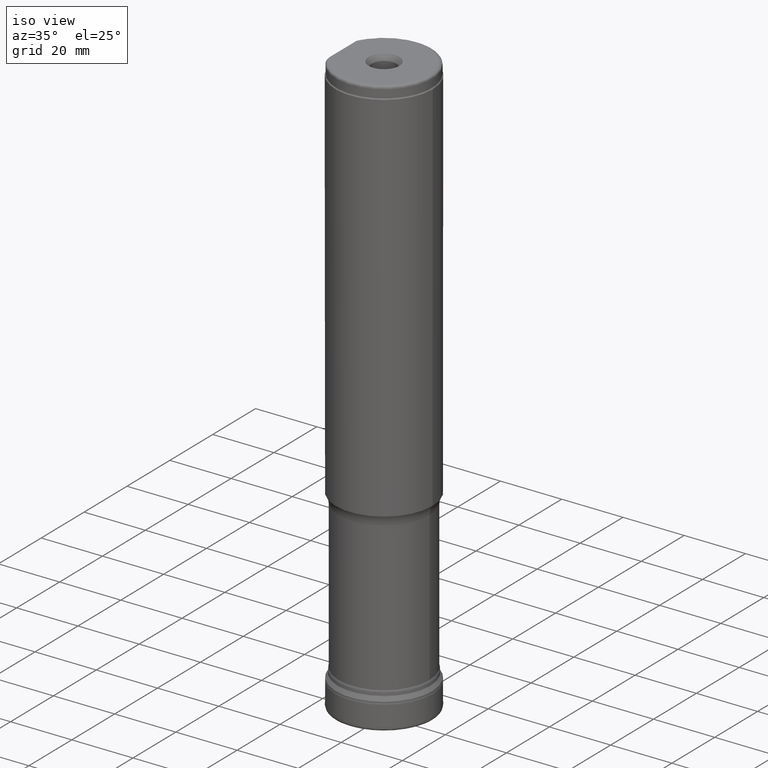
[diagram: clean part render]
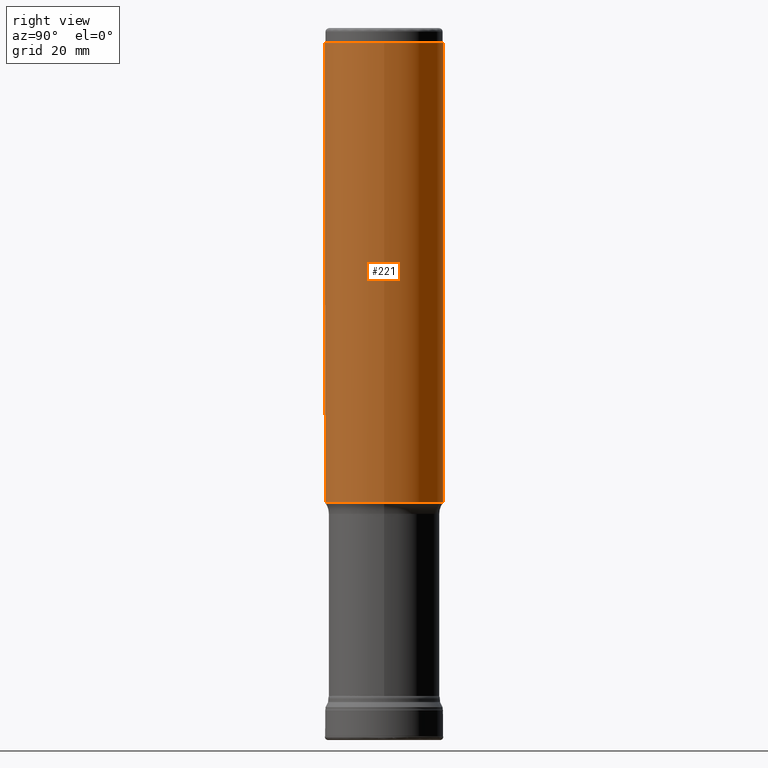
[diagram: tour spotlight — one face highlighted and labeled with its STEP entity id]
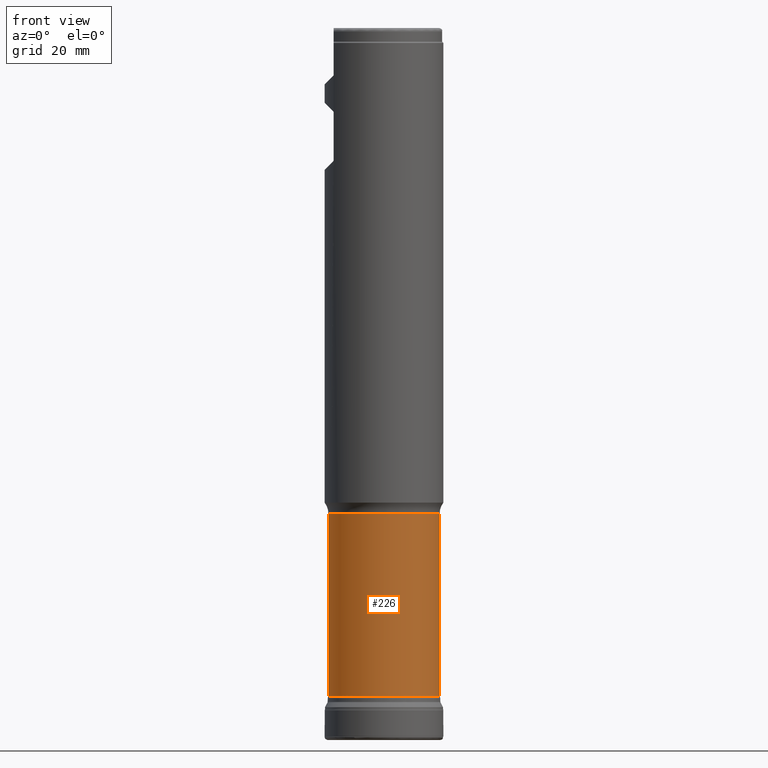
[diagram: tour spotlight — one face highlighted and labeled with its STEP entity id]
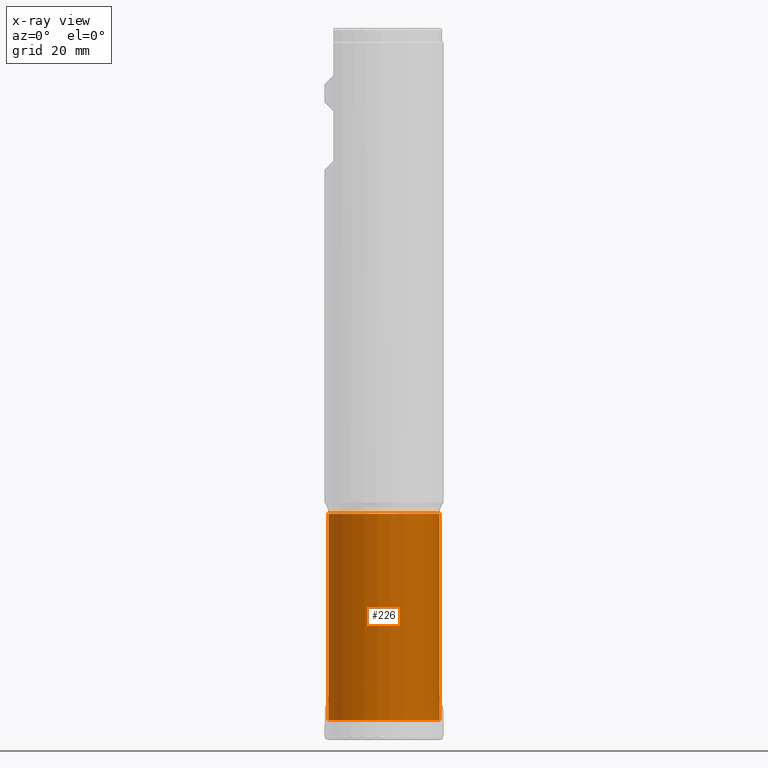
[diagram: x-ray of the same camera — body ghosted, this tour face saturated]
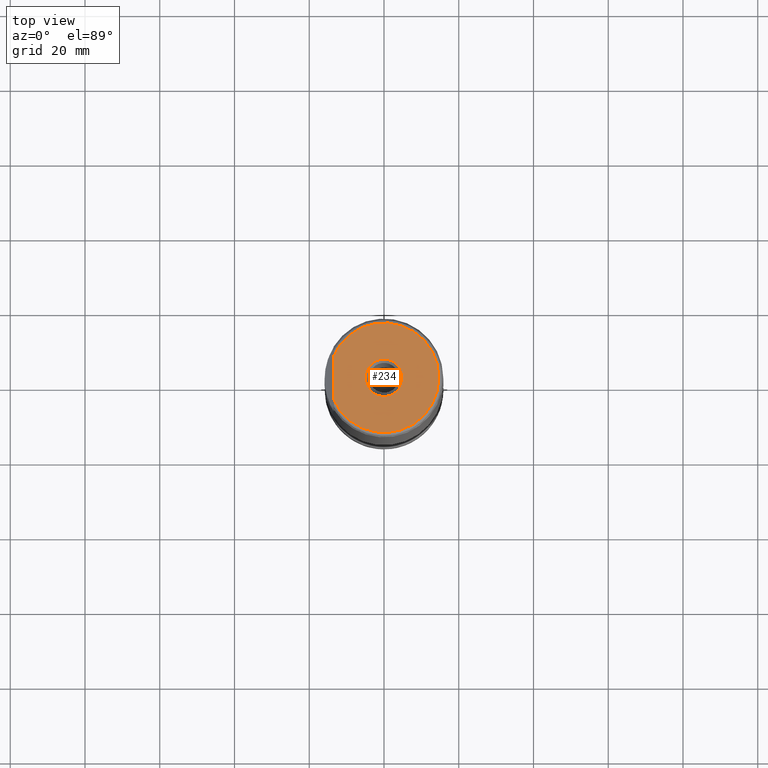
[diagram: tour spotlight — one face highlighted and labeled with its STEP entity id]
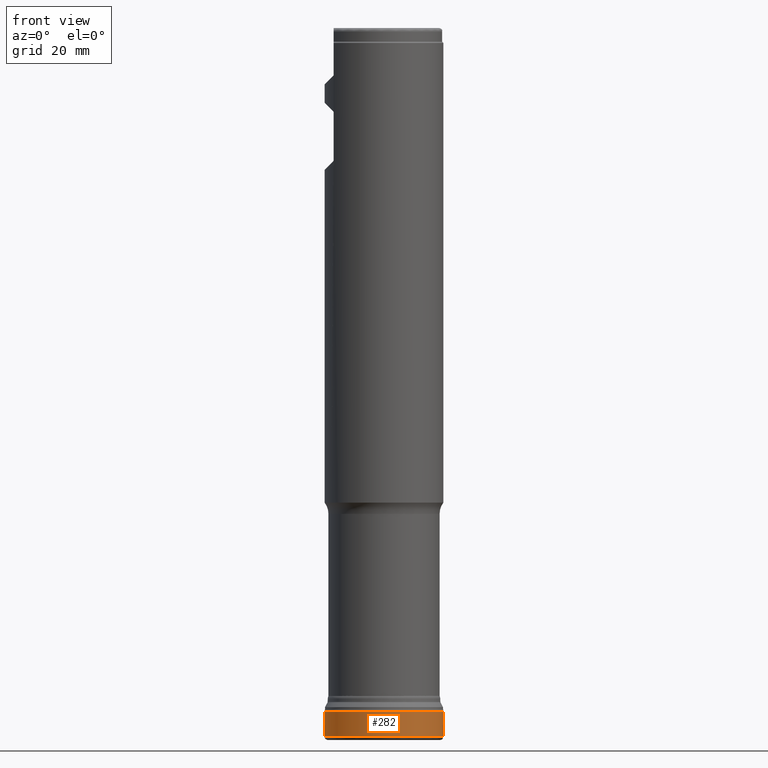
[diagram: tour spotlight — one face highlighted and labeled with its STEP entity id]
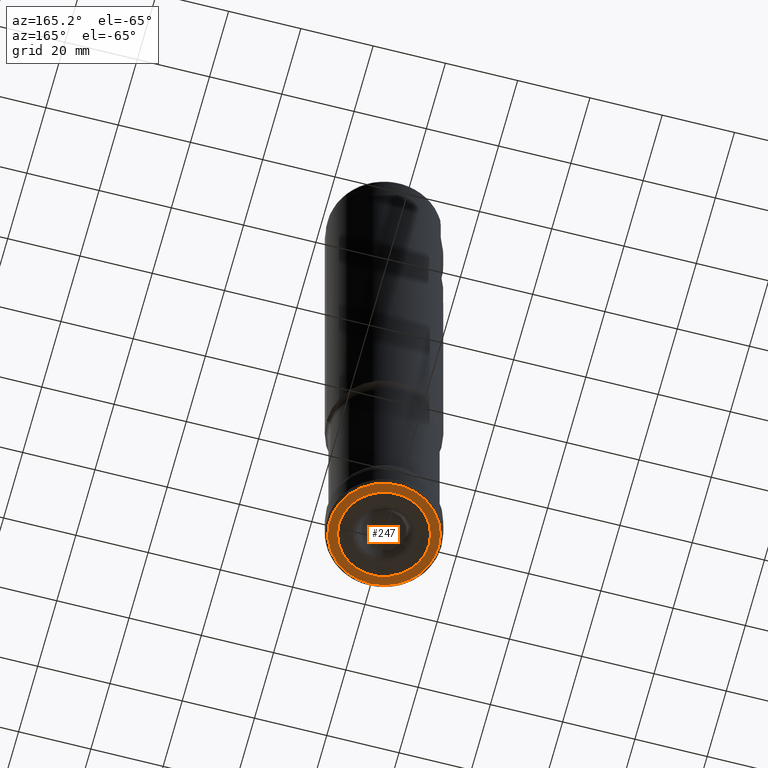
[diagram: tour spotlight — one face highlighted and labeled with its STEP entity id]
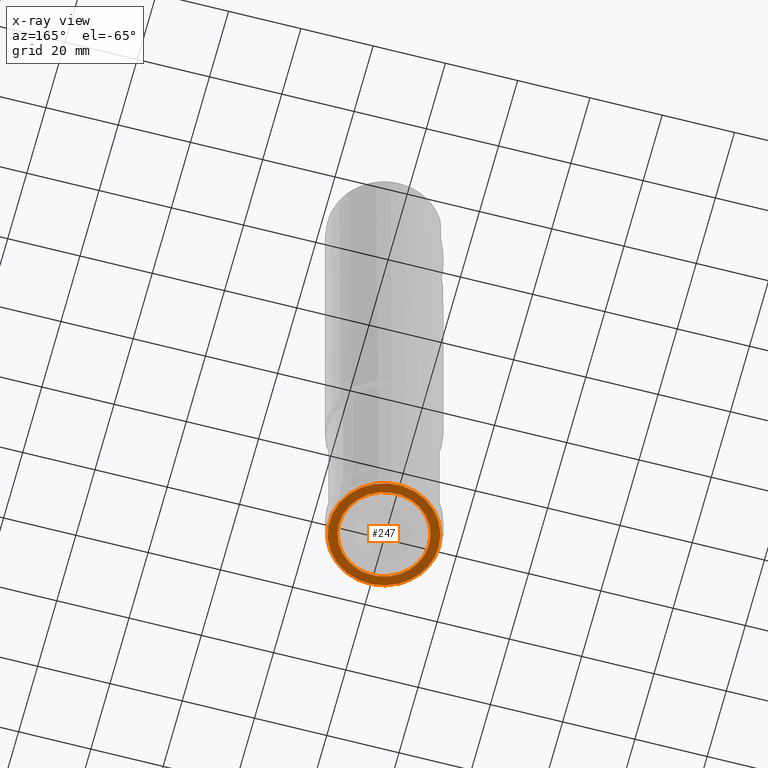
[diagram: x-ray of the same camera — body ghosted, this tour face saturated]
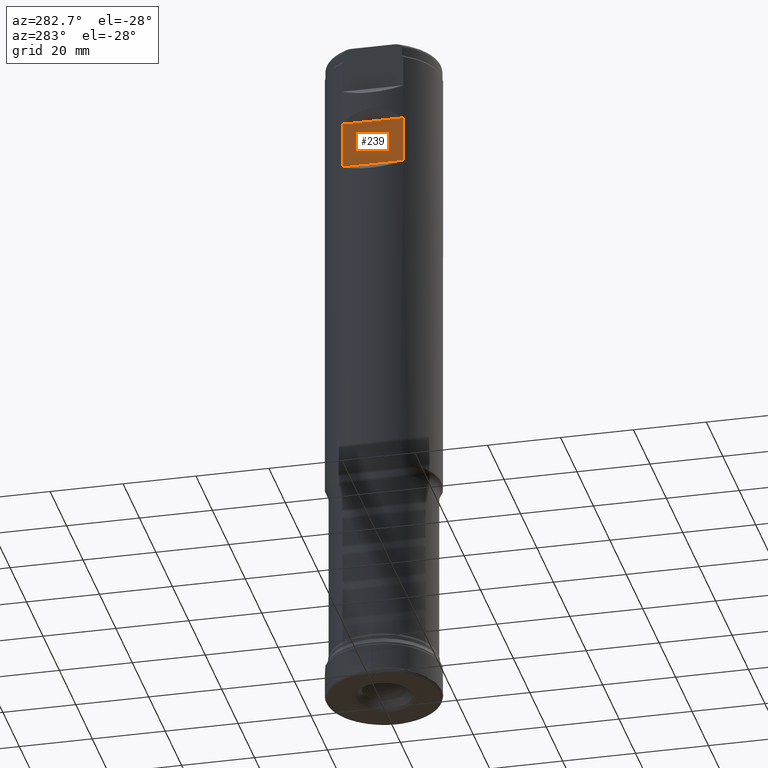
[diagram: tour spotlight — one face highlighted and labeled with its STEP entity id]
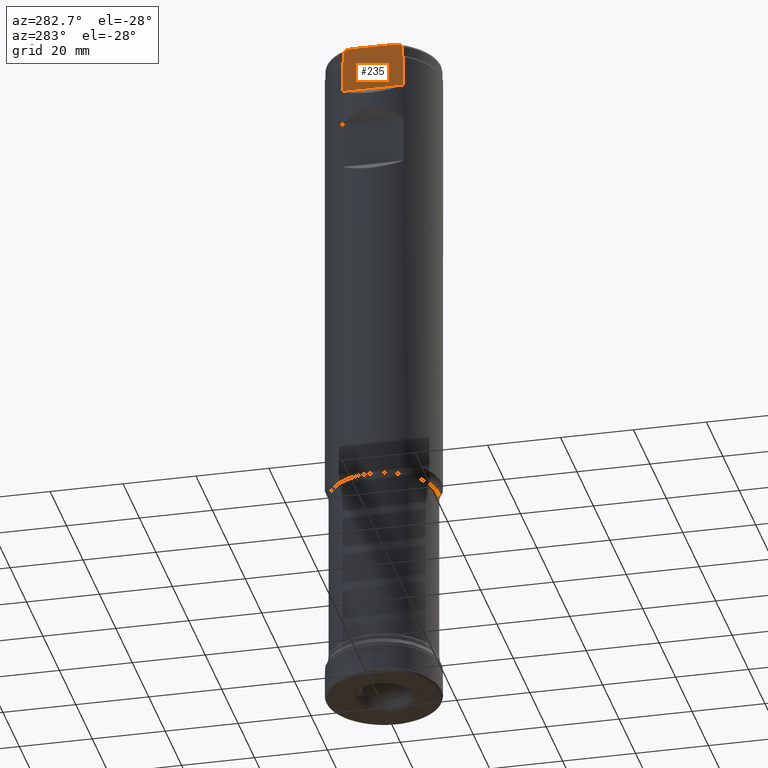
[diagram: tour spotlight — one face highlighted and labeled with its STEP entity id]
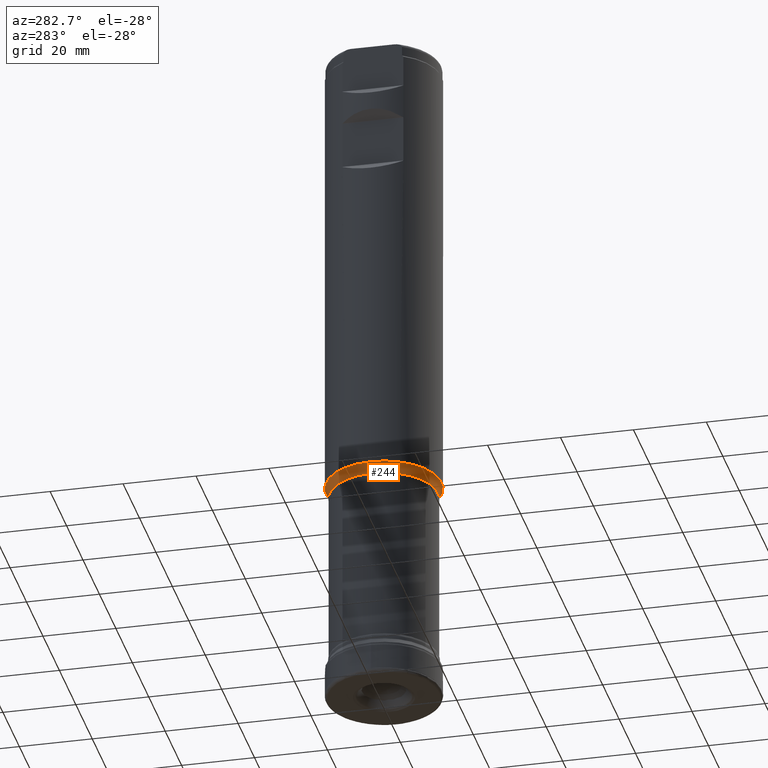
[diagram: tour spotlight — one face highlighted and labeled with its STEP entity id]
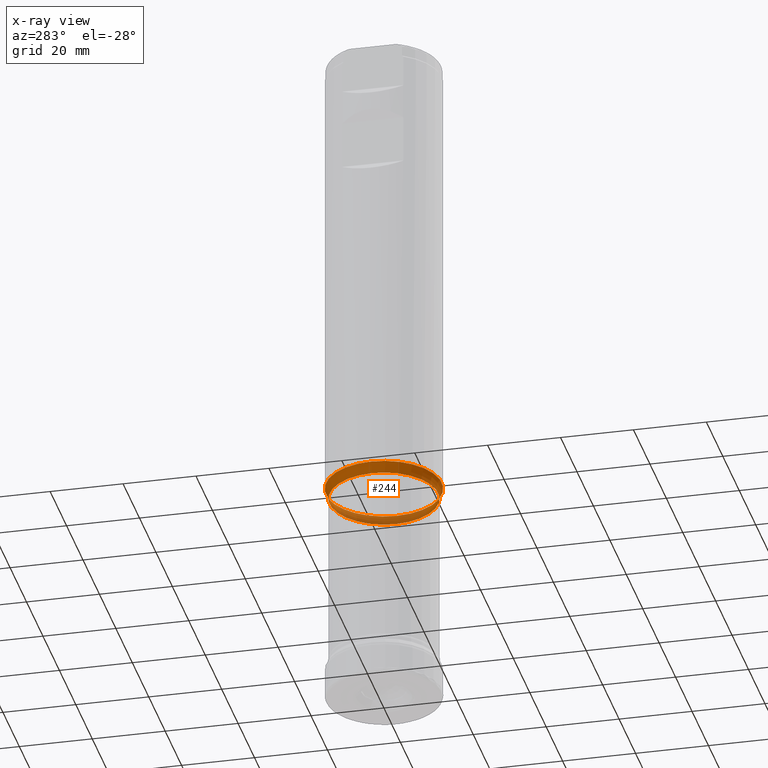
[diagram: x-ray of the same camera — body ghosted, this tour face saturated]
A machine part: a face-by-face anatomy tour. The part has 63 B-rep faces; the first image is the clean iso view, then the 8 largest visible faces are spotlighted one at a time (largest first), each with its STEP entity span.

Face 1 — right view, entity #221. In plain terms, the highlighted cylindrical surface (bore or boss wall) has radius 15.875 mm, axis along (0, 0, 1).
Definition (entity closure, byte-faithful):
#221=ADVANCED_FACE('',(#320,#321,#322),#284,.T.);
#284=CYLINDRICAL_SURFACE('',#993,15.875);
#291=LINE('',#1614,#304);
#292=LINE('',#1646,#305);
#293=LINE('',#1661,#306);
#294=LINE('',#1694,#307);
#304=VECTOR('',#1065,1.);
#305=VECTOR('',#1068,1.);
#306=VECTOR('',#1069,1.);
#307=VECTOR('',#1072,1.);
#317=ELLIPSE('',#989,22.4506403026729,15.875);
#318=ELLIPSE('',#990,22.4506403026729,15.875);
#319=ELLIPSE('',#991,22.4506403026729,15.875);
#320=FACE_BOUND('',#423,.T.);
#321=FACE_BOUND('',#424,.T.);
#322=FACE_BOUND('',#425,.T.);
#423=EDGE_LOOP('',(#537));
#424=EDGE_LOOP('',(#538,#539,#540,#541,#542,#543,#544,#545));
#425=EDGE_LOOP('',(#546,#547,#548,#549,#550,#551));
#537=ORIENTED_EDGE('',*,*,#768,.T.);
#538=ORIENTED_EDGE('',*,*,#769,.F.);
#539=ORIENTED_EDGE('',*,*,#770,.T.);
#540=ORIENTED_EDGE('',*,*,#771,.F.);
#541=ORIENTED_EDGE('',*,*,#772,.T.);
#542=ORIENTED_EDGE('',*,*,#773,.F.);
#543=ORIENTED_EDGE('',*,*,#774,.T.);
#544=ORIENTED_EDGE('',*,*,#775,.F.);
#545=ORIENTED_EDGE('',*,*,#776,.T.);
#546=ORIENTED_EDGE('',*,*,#777,.F.);
#547=ORIENTED_EDGE('',*,*,#778,.T.);
#548=ORIENTED_EDGE('',*,*,#779,.F.);
#549=ORIENTED_EDGE('',*,*,#780,.T.);
#550=ORIENTED_EDGE('',*,*,#781,.F.);
#551=ORIENTED_EDGE('',*,*,#782,.T.);
#697=VERTEX_POINT('',#1596);
#698=VERTEX_POINT('',#1598);
#699=VERTEX_POINT('',#1599);
#700=VERTEX_POINT('',#1613);
#701=VERTEX_POINT('',#1615);
#702=VERTEX_POINT('',#1629);
#703=VERTEX_POINT('',#1631);
#704=VERTEX_POINT('',#1645);
#705=VERTEX_POINT('',#1647);
#706=VERTEX_POINT('',#1662);
#707=VERTEX_POINT('',#1663);
#708=VERTEX_POINT('',#1677);
#709=VERTEX_POINT('',#1679);
#710=VERTEX_POINT('',#1693);
#711=VERTEX_POINT('',#1695);
#768=EDGE_CURVE('',#697,#697,#848,.T.);
#769=EDGE_CURVE('',#698,#699,#317,.T.);
#770=EDGE_CURVE('',#698,#700,#934,.T.);
#771=EDGE_CURVE('',#701,#700,#291,.T.);
#772=EDGE_CURVE('',#701,#702,#935,.T.);
#773=EDGE_CURVE('',#703,#702,#318,.T.);
#774=EDGE_CURVE('',#703,#704,#936,.T.);
#775=EDGE_CURVE('',#705,#704,#292,.T.);
#776=EDGE_CURVE('',#705,#699,#937,.T.);
#777=EDGE_CURVE('',#706,#707,#293,.T.);
#778=EDGE_CURVE('',#706,#708,#938,.T.);
#779=EDGE_CURVE('',#709,#708,#319,.T.);
#780=EDGE_CURVE('',#709,#710,#939,.T.);
#781=EDGE_CURVE('',#711,#710,#294,.T.);
#782=EDGE_CURVE('',#711,#707,#849,.T.);
#848=CIRCLE('',#988,15.875);
#849=CIRCLE('',#992,15.875);
#934=B_SPLINE_CURVE_WITH_KNOTS('',3,(#1600,#1601,#1602,#1603,#1604,#1605,
#1606,#1607,#1608,#1609,#1610,#1611,#1612),.UNSPECIFIED.,.F.,.F.,(4,3,3,
3,4),(0.,0.454533174547886,0.702164538890531,0.910432884672688,1.),
 .UNSPECIFIED.);
#935=B_SPLINE_CURVE_WITH_KNOTS('',3,(#1616,#1617,#1618,#1619,#1620,#1621,
#1622,#1623,#1624,#1625,#1626,#1627,#1628),.UNSPECIFIED.,.F.,.F.,(4,3,3,
3,4),(0.,0.199147216075928,0.441583635070333,0.807737111942939,1.),
 .UNSPECIFIED.);
#936=B_SPLINE_CURVE_WITH_KNOTS('',3,(#1632,#1633,#1634,#1635,#1636,#1637,
#1638,#1639,#1640,#1641,#1642,#1643,#1644),.UNSPECIFIED.,.F.,.F.,(4,3,3,
3,4),(0.,0.454533174547967,0.702164538890592,0.910432884672705,1.),
 .UNSPECIFIED.);
#937=B_SPLINE_CURVE_WITH_KNOTS('',3,(#1648,#1649,#1650,#1651,#1652,#1653,
#1654,#1655,#1656,#1657,#1658,#1659,#1660),.UNSPECIFIED.,.F.,.F.,(4,3,3,
3,4),(0.,0.199147216075945,0.44158363507037,0.807737111943004,1.),
 .UNSPECIFIED.);
#938=B_SPLINE_CURVE_WITH_KNOTS('',3,(#1664,#1665,#1666,#1667,#1668,#1669,
#1670,#1671,#1672,#1673,#1674,#1675,#1676),.UNSPECIFIED.,.F.,.F.,(4,3,3,
3,4),(0.,0.199147216075944,0.441583635070369,0.807737111943004,1.),
 .UNSPECIFIED.);
#939=B_SPLINE_CURVE_WITH_KNOTS('',3,(#1680,#1681,#1682,#1683,#1684,#1685,
#1686,#1687,#1688,#1689,#1690,#1691,#1692),.UNSPECIFIED.,.F.,.F.,(4,3,3,
3,4),(0.,0.454533174547886,0.702164538890532,0.910432884672689,1.),
 .UNSPECIFIED.);
#988=AXIS2_PLACEMENT_3D('',#1595,#1061,#1062);
#989=AXIS2_PLACEMENT_3D('',#1597,#1063,#1064);
#990=AXIS2_PLACEMENT_3D('',#1630,#1066,#1067);
#991=AXIS2_PLACEMENT_3D('',#1678,#1070,#1071);
#992=AXIS2_PLACEMENT_3D('',#1696,#1073,#1074);
#993=AXIS2_PLACEMENT_3D('',#1697,#1075,#1076);
#1061=DIRECTION('',(1.17145536458252E-15,0.,1.));
#1062=DIRECTION('',(1.,0.,-8.74191357972563E-16));
#1063=DIRECTION('',(-0.707106781186548,0.,-0.707106781186547));
#1064=DIRECTION('',(-0.707106781186547,0.,0.707106781186548));
#1065=DIRECTION('',(1.17145536458252E-15,0.,1.));
#1066=DIRECTION('',(-0.707106781186547,0.,0.707106781186548));
#1067=DIRECTION('',(0.707106781186548,0.,0.707106781186547));
#1068=DIRECTION('',(-1.17145536458252E-15,0.,-1.));
#1069=DIRECTION('',(1.17145536458252E-15,0.,1.));
#1070=DIRECTION('',(-0.707106781186547,0.,0.707106781186548));
#1071=DIRECTION('',(0.707106781186548,0.,0.707106781186547));
#1072=DIRECTION('',(-1.17145536458252E-15,0.,-1.));
#1073=DIRECTION('',(-1.17145536458252E-15,0.,-1.));
#1074=DIRECTION('',(-1.,0.,1.74838271594513E-15));
#1075=DIRECTION('',(1.17145536458252E-15,0.,1.));
#1076=DIRECTION('',(1.,0.,-1.74838271594513E-15));
#1595=CARTESIAN_POINT('',(7.43874156509903E-14,0.,63.5));
#1596=CARTESIAN_POINT('',(15.8750000000001,0.,63.5));
#1597=CARTESIAN_POINT('',(1.81099882773118E-13,0.,154.593925));
#1598=CARTESIAN_POINT('',(-13.5752679656438,-8.22968557485394,168.169192965644));
#1599=CARTESIAN_POINT('',(-13.5752679656438,8.22968557485394,168.169192965644));
#1600=CARTESIAN_POINT('',(-13.5752679656438,-8.22968557485394,168.169192965644));
#1601=CARTESIAN_POINT('',(-13.5555907887269,-8.26214403842777,168.149515788727));
#1602=CARTESIAN_POINT('',(-13.5365680579466,-8.29324127122089,168.12516207342));
#1603=CARTESIAN_POINT('',(-13.5208425116276,-8.31880056112418,168.094709416179));
#1604=CARTESIAN_POINT('',(-13.5122227966048,-8.33281049061594,168.078017263056));
#1605=CARTESIAN_POINT('',(-13.5044914646336,-8.34532550776589,168.059155789535));
#1606=CARTESIAN_POINT('',(-13.4986654187336,-8.35473859034977,168.038500120755));
#1607=CARTESIAN_POINT('',(-13.493770613111,-8.36264707757229,168.021146072157));
#1608=CARTESIAN_POINT('',(-13.4901610267412,-8.36846404353178,168.002110432187));
#1609=CARTESIAN_POINT('',(-13.4884955668758,-8.37114761202832,167.982676158377));
#1610=CARTESIAN_POINT('',(-13.4877709546285,-8.37231518540508,167.974220648213));
#1611=CARTESIAN_POINT('',(-13.4873999999998,-8.3729126497295,167.965627374111));
#1612=CARTESIAN_POINT('',(-13.4873999999998,-8.3729126497295,167.957060931288));
#1613=CARTESIAN_POINT('',(-13.4873999999998,-8.3729126497295,167.957060931288));
#1614=CARTESIAN_POINT('',(-13.4873999999998,-8.3729126497295,190.5));
#1615=CARTESIAN_POINT('',(-13.4873999999998,-8.3729126497295,155.099189068712));
#1616=CARTESIAN_POINT('',(-13.4873999999998,-8.3729126497295,155.099189068712));
#1617=CARTESIAN_POINT('',(-13.4873999999998,-8.3729126497295,155.080368935952));
#1618=CARTESIAN_POINT('',(-13.4892545485355,-8.36992693774145,155.061315140994));
#1619=CARTESIAN_POINT('',(-13.492596038309,-8.36453687582313,155.04359568627));
#1620=CARTESIAN_POINT('',(-13.4966604929405,-8.35798061989731,155.022042449628));
#1621=CARTESIAN_POINT('',(-13.5029748527275,-8.34778398154643,155.001824415447));
#1622=CARTESIAN_POINT('',(-13.510442768906,-8.33568000754061,154.983886457532));
#1623=CARTESIAN_POINT('',(-13.5216923410306,-8.31744673800207,154.956864950259));
#1624=CARTESIAN_POINT('',(-13.53579847478,-8.29449252987567,154.934000834981));
#1625=CARTESIAN_POINT('',(-13.5507313658074,-8.27002445290942,154.914830837028));
#1626=CARTESIAN_POINT('',(-13.5586383195839,-8.25706862585497,154.904680338546));
#1627=CARTESIAN_POINT('',(-13.5668642919062,-8.24354784478495,154.895460708089));
#1628=CARTESIAN_POINT('',(-13.5752679656428,-8.22968557485581,154.887057034353));
#1629=CARTESIAN_POINT('',(-13.5752679656439,-8.22968557485394,154.887057034356));
#1630=CARTESIAN_POINT('',(1.97346094351295E-13,0.,168.462325));
#1631=CARTESIAN_POINT('',(-13.5752679656439,8.22968557485394,154.887057034356));
#1632=CARTESIAN_POINT('',(-13.5752679656439,8.22968557485394,154.887057034356));
#1633=CARTESIAN_POINT('',(-13.5555907887269,8.26214403842778,154.906734211273));
#1634=CARTESIAN_POINT('',(-13.5365680579466,8.29324127122088,154.93108792658));
#1635=CARTESIAN_POINT('',(-13.5208425116276,8.31880056112417,154.961540583821));
#1636=CARTESIAN_POINT('',(-13.5122227966049,8.33281049061593,154.978232736944));
#1637=CARTESIAN_POINT('',(-13.5044914646336,8.34532550776589,154.997094210465));
#1638=CARTESIAN_POINT('',(-13.4986654187336,8.35473859034977,155.017749879245));
#1639=CARTESIAN_POINT('',(-13.493770613111,8.36264707757229,155.035103927843));
#1640=CARTESIAN_POINT('',(-13.4901610267412,8.36846404353178,155.054139567813));
#1641=CARTESIAN_POINT('',(-13.4884955668758,8.37114761202831,155.073573841623));
#1642=CARTESIAN_POINT('',(-13.4877709546285,8.37231518540507,155.082029351787));
#1643=CARTESIAN_POINT('',(-13.4873999999998,8.3729126497295,155.090622625889));
#1644=CARTESIAN_POINT('',(-13.4873999999998,8.3729126497295,155.099189068712));
#1645=CARTESIAN_POINT('',(-13.4873999999998,8.3729126497295,155.099189068712));
#1646=CARTESIAN_POINT('',(-13.4873999999998,8.3729126497295,190.5));
#1647=CARTESIAN_POINT('',(-13.4873999999998,8.3729126497295,167.957060931288));
#1648=CARTESIAN_POINT('',(-13.4873999999998,8.3729126497295,167.957060931288));
#1649=CARTESIAN_POINT('',(-13.4873999999998,8.3729126497295,167.975881064048));
#1650=CARTESIAN_POINT('',(-13.4892545485355,8.36992693774145,167.994934859006));
#1651=CARTESIAN_POINT('',(-13.4925960383089,8.36453687582313,168.01265431373));
#1652=CARTESIAN_POINT('',(-13.4966604929404,8.35798061989731,168.034207550372));
#1653=CARTESIAN_POINT('',(-13.5029748527275,8.34778398154643,168.054425584553));
#1654=CARTESIAN_POINT('',(-13.5104427689059,8.33568000754061,168.072363542468));
#1655=CARTESIAN_POINT('',(-13.5216923410306,8.31744673800207,168.099385049741));
#1656=CARTESIAN_POINT('',(-13.53579847478,8.29449252987567,168.122249165019));
#1657=CARTESIAN_POINT('',(-13.5507313658074,8.27002445290942,168.141419162972));
#1658=CARTESIAN_POINT('',(-13.5586383195839,8.25706862585498,168.151569661454));
#1659=CARTESIAN_POINT('',(-13.5668642919062,8.24354784478497,168.160789291911));
#1660=CARTESIAN_POINT('',(-13.5752679656428,8.22968557485584,168.169192965647));
#1661=CARTESIAN_POINT('',(-13.4873999999998,-8.37291264972951,190.5));
#1662=CARTESIAN_POINT('',(-13.4873999999998,-8.3729126497295,177.924264068712));
#1663=CARTESIAN_POINT('',(-13.4873999999998,-8.3729126497295,186.5));
#1664=CARTESIAN_POINT('',(-13.4873999999998,-8.3729126497295,177.924264068712));
#1665=CARTESIAN_POINT('',(-13.4873999999998,-8.3729126497295,177.905443935952));
#1666=CARTESIAN_POINT('',(-13.4892545485355,-8.36992693774145,177.886390140994));
#1667=CARTESIAN_POINT('',(-13.4925960383089,-8.36453687582313,177.86867068627));
#1668=CARTESIAN_POINT('',(-13.4966604929404,-8.35798061989731,177.847117449628));
#1669=CARTESIAN_POINT('',(-13.5029748527275,-8.34778398154643,177.826899415447));
#1670=CARTESIAN_POINT('',(-13.5104427689059,-8.33568000754061,177.808961457532));
#1671=CARTESIAN_POINT('',(-13.5216923410306,-8.31744673800207,177.781939950259));
#1672=CARTESIAN_POINT('',(-13.53579847478,-8.29449252987567,177.759075834981));
#1673=CARTESIAN_POINT('',(-13.5507313658073,-8.27002445290942,177.739905837028));
#1674=CARTESIAN_POINT('',(-13.5586383195839,-8.25706862585498,177.729755338546));
#1675=CARTESIAN_POINT('',(-13.5668642919062,-8.24354784478497,177.720535708089));
#1676=CARTESIAN_POINT('',(-13.5752679656428,-8.22968557485584,177.712132034353));
#1677=CARTESIAN_POINT('',(-13.5752679656438,-8.22968557485394,177.712132034356));
#1678=CARTESIAN_POINT('',(2.24084650907043E-13,0.,191.2874));
#1679=CARTESIAN_POINT('',(-13.5752679656438,8.22968557485394,177.712132034356));
#1680=CARTESIAN_POINT('',(-13.5752679656438,8.22968557485394,177.712132034356));
#1681=CARTESIAN_POINT('',(-13.5555907887268,8.26214403842777,177.731809211273));
#1682=CARTESIAN_POINT('',(-13.5365680579466,8.29324127122089,177.75616292658));
#1683=CARTESIAN_POINT('',(-13.5208425116275,8.31880056112418,177.786615583821));
#1684=CARTESIAN_POINT('',(-13.5122227966048,8.33281049061594,177.803307736944));
#1685=CARTESIAN_POINT('',(-13.5044914646336,8.34532550776589,177.822169210465));
#1686=CARTESIAN_POINT('',(-13.4986654187336,8.35473859034977,177.842824879245));
#1687=CARTESIAN_POINT('',(-13.493770613111,8.36264707757229,177.860178927843));
#1688=CARTESIAN_POINT('',(-13.4901610267412,8.36846404353178,177.879214567813));
#1689=CARTESIAN_POINT('',(-13.4884955668758,8.37114761202832,177.898648841623));
#1690=CARTESIAN_POINT('',(-13.4877709546285,8.37231518540508,177.907104351787));
#1691=CARTESIAN_POINT('',(-13.4873999999998,8.3729126497295,177.915697625889));
#1692=CARTESIAN_POINT('',(-13.4873999999998,8.3729126497295,177.924264068712));
#1693=CARTESIAN_POINT('',(-13.4873999999998,8.3729126497295,177.924264068712));
#1694=CARTESIAN_POINT('',(-13.4873999999998,8.37291264972951,190.5));
#1695=CARTESIAN_POINT('',(-13.4873999999998,8.3729126497295,186.5));
#1696=CARTESIAN_POINT('',(2.18476425494641E-13,0.,186.5));
#1697=CARTESIAN_POINT('',(2.23162246952971E-13,0.,190.5));

Face 2 — front view, entity #226. An x-ray twin of the same camera follows (body ghosted, this face saturated) — the face is partly hidden behind the body. In plain terms, the highlighted cylindrical surface (bore or boss wall) has radius 14.875 mm, axis along (0, 0, 1).
Definition (entity closure, byte-faithful):
#226=ADVANCED_FACE('',(#325,#326),#286,.T.);
#286=CYLINDRICAL_SURFACE('',#1004,14.875);
#325=FACE_BOUND('',#431,.T.);
#326=FACE_BOUND('',#432,.T.);
#431=EDGE_LOOP('',(#566));
#432=EDGE_LOOP('',(#567));
#566=ORIENTED_EDGE('',*,*,#794,.T.);
#567=ORIENTED_EDGE('',*,*,#795,.T.);
#720=VERTEX_POINT('',#1759);
#721=VERTEX_POINT('',#1761);
#794=EDGE_CURVE('',#720,#720,#854,.T.);
#795=EDGE_CURVE('',#721,#721,#855,.T.);
#854=CIRCLE('',#1002,14.875);
#855=CIRCLE('',#1003,14.875);
#1002=AXIS2_PLACEMENT_3D('',#1758,#1095,#1096);
#1003=AXIS2_PLACEMENT_3D('',#1760,#1097,#1098);
#1004=AXIS2_PLACEMENT_3D('',#1762,#1099,#1100);
#1095=DIRECTION('',(-1.17145536458252E-15,0.,-1.));
#1096=DIRECTION('',(1.,0.,-1.39944078734263E-15));
#1097=DIRECTION('',(1.17145536458252E-15,0.,1.));
#1098=DIRECTION('',(1.,0.,-1.16620065611886E-15));
#1099=DIRECTION('',(1.17145536458252E-15,0.,1.));
#1100=DIRECTION('',(1.,0.,-1.86592104979018E-15));
#1758=CARTESIAN_POINT('',(7.08730495572427E-14,0.,60.5));
#1759=CARTESIAN_POINT('',(14.8750000000001,0.,60.5));
#1760=CARTESIAN_POINT('',(6.20871343228738E-15,0.,5.3));
#1761=CARTESIAN_POINT('',(14.875,0.,5.29999999999998));
#1762=CARTESIAN_POINT('',(2.23162246952971E-13,0.,190.5));

Face 3 — top view, entity #234. In plain terms, the highlighted planar face has unit normal (-0, 0, -1).
Definition (entity closure, byte-faithful):
#197=PLANE('',#1012);
#234=ADVANCED_FACE('',(#339,#340),#197,.F.);
#297=LINE('',#2106,#310);
#310=VECTOR('',#1115,1.);
#339=FACE_BOUND('',#445,.T.);
#340=FACE_BOUND('',#446,.T.);
#445=EDGE_LOOP('',(#580,#581));
#446=EDGE_LOOP('',(#582));
#580=ORIENTED_EDGE('',*,*,#789,.T.);
#581=ORIENTED_EDGE('',*,*,#802,.T.);
#582=ORIENTED_EDGE('',*,*,#801,.T.);
#716=VERTEX_POINT('',#1717);
#717=VERTEX_POINT('',#1718);
#728=VERTEX_POINT('',#2104);
#789=EDGE_CURVE('',#716,#717,#852,.T.);
#801=EDGE_CURVE('',#728,#728,#858,.T.);
#802=EDGE_CURVE('',#717,#716,#297,.T.);
#852=CIRCLE('',#998,14.675);
#858=CIRCLE('',#1010,5.);
#998=AXIS2_PLACEMENT_3D('',#1716,#1087,#1088);
#1010=AXIS2_PLACEMENT_3D('',#2103,#1111,#1112);
#1012=AXIS2_PLACEMENT_3D('',#2107,#1116,#1117);
#1087=DIRECTION('',(1.17145536458252E-15,0.,1.));
#1088=DIRECTION('',(-1.,0.,1.89135097891849E-15));
#1111=DIRECTION('',(-1.17145536458252E-15,0.,-1.));
#1112=DIRECTION('',(-1.,0.,0.));
#1115=DIRECTION('',(0.,-1.,0.));
#1116=DIRECTION('',(-1.17145536458252E-15,0.,-1.));
#1117=DIRECTION('',(-1.,0.,1.16573417585641E-15));
#1716=CARTESIAN_POINT('',(2.23162246952971E-13,0.,190.5));
#1717=CARTESIAN_POINT('',(-13.4873999999998,-5.78322282468867,190.5));
#1718=CARTESIAN_POINT('',(-13.4873999999998,5.78322282468869,190.5));
#2103=CARTESIAN_POINT('',(2.23162246952971E-13,0.,190.5));
#2104=CARTESIAN_POINT('',(-4.99999999999978,0.,190.5));
#2106=CARTESIAN_POINT('',(-13.4873999999998,17.5,190.5));
#2107=CARTESIAN_POINT('',(2.23162246952971E-13,-15.875,190.5));

Face 4 — front view, entity #282. In plain terms, the highlighted face is a SurfaceOfRevolution surface.
Definition (entity closure, byte-faithful):
#145=SURFACE_OF_REVOLUTION('',#985,#184);
#184=AXIS1_PLACEMENT('',#2600,#1253);
#282=ADVANCED_FACE('',(#419,#420),#145,.F.);
#419=FACE_BOUND('',#533,.T.);
#420=FACE_BOUND('',#534,.T.);
#533=EDGE_LOOP('',(#693));
#534=EDGE_LOOP('',(#694));
#693=ORIENTED_EDGE('',*,*,#846,.T.);
#694=ORIENTED_EDGE('',*,*,#847,.F.);
#766=VERTEX_POINT('',#2584);
#767=VERTEX_POINT('',#2593);
#846=EDGE_CURVE('',#766,#766,#893,.T.);
#847=EDGE_CURVE('',#767,#767,#894,.T.);
#893=CIRCLE('',#1057,15.865);
#894=CIRCLE('',#1058,15.8752971730923);
#985=B_SPLINE_CURVE_WITH_KNOTS('',5,(#2594,#2595,#2596,#2597,#2598,#2599),
 .UNSPECIFIED.,.F.,.F.,(6,6),(0.,1.),.UNSPECIFIED.);
#1057=AXIS2_PLACEMENT_3D('',#2583,#1248,#1249);
#1058=AXIS2_PLACEMENT_3D('',#2592,#1251,#1252);
#1248=DIRECTION('',(0.,0.,-1.));
#1249=DIRECTION('',(-1.,0.,0.));
#1251=DIRECTION('',(0.,0.,-1.));
#1252=DIRECTION('',(-1.,0.,0.));
#1253=DIRECTION('',(0.,0.,-1.));
#2583=CARTESIAN_POINT('',(0.,0.,7.61672219486873));
#2584=CARTESIAN_POINT('',(-15.865,0.,7.61672219486873));
#2592=CARTESIAN_POINT('',(0.,0.,1.05374652369843));
#2593=CARTESIAN_POINT('',(-15.8752971730923,0.,1.05374652369843));
#2594=CARTESIAN_POINT('',(-7.93764846278062,-13.7484104301569,1.05382044711985));
#2595=CARTESIAN_POINT('',(-7.93830995193617,-13.7495561629829,2.36640463510477));
#2596=CARTESIAN_POINT('',(-7.93851770827686,-13.7499160075206,3.67898910303986));
#2597=CARTESIAN_POINT('',(-7.93791258737327,-13.7488679073709,4.99157622431406));
#2598=CARTESIAN_POINT('',(-7.93596304063031,-13.7454911933603,6.30415720288939));
#2599=CARTESIAN_POINT('',(-7.93250000000007,-13.7394930310401,7.61672219486873));
#2600=CARTESIAN_POINT('',(0.,0.,0.));

Face 5 — auxiliary view, entity #247. An x-ray twin of the same camera follows (body ghosted, this face saturated) — the face is partly hidden behind the body. In plain terms, the highlighted face is a SurfaceOfRevolution surface.
Definition (entity closure, byte-faithful):
#110=SURFACE_OF_REVOLUTION('',#950,#149);
#149=AXIS1_PLACEMENT('',#2172,#1152);
#247=ADVANCED_FACE('',(#349,#350),#110,.F.);
#349=FACE_BOUND('',#463,.T.);
#350=FACE_BOUND('',#464,.T.);
#463=EDGE_LOOP('',(#623));
#464=EDGE_LOOP('',(#624));
#623=ORIENTED_EDGE('',*,*,#811,.T.);
#624=ORIENTED_EDGE('',*,*,#812,.F.);
#731=VERTEX_POINT('',#2156);
#732=VERTEX_POINT('',#2165);
#811=EDGE_CURVE('',#731,#731,#860,.T.);
#812=EDGE_CURVE('',#732,#732,#861,.T.);
#860=CIRCLE('',#1024,15.090228059424);
#861=CIRCLE('',#1025,12.4554251770263);
#950=B_SPLINE_CURVE_WITH_KNOTS('',5,(#2166,#2167,#2168,#2169,#2170,#2171),
 .UNSPECIFIED.,.F.,.F.,(6,6),(0.,1.),.UNSPECIFIED.);
#1024=AXIS2_PLACEMENT_3D('',#2155,#1147,#1148);
#1025=AXIS2_PLACEMENT_3D('',#2164,#1150,#1151);
#1147=DIRECTION('',(0.,0.,-1.));
#1148=DIRECTION('',(-1.,0.,0.));
#1150=DIRECTION('',(0.,0.,-1.));
#1151=DIRECTION('',(-1.,0.,0.));
#1152=DIRECTION('',(0.,0.,-1.));
#2155=CARTESIAN_POINT('',(0.,0.,4.39446516387043E-14));
#2156=CARTESIAN_POINT('',(-15.090228059424,0.,4.39446516387043E-14));
#2164=CARTESIAN_POINT('',(0.,0.,0.0227797328222775));
#2165=CARTESIAN_POINT('',(-12.4554251770263,0.,0.0227797328222775));
#2166=CARTESIAN_POINT('',(-6.22771258851334,-10.7867146182413,0.0227797328223147));
#2167=CARTESIAN_POINT('',(-6.49116490826833,-11.2430274214288,0.0133574135511824));
#2168=CARTESIAN_POINT('',(-6.75463854865062,-11.699377153026,0.00631958713234938));
#2169=CARTESIAN_POINT('',(-7.01812620605018,-12.1557511628094,0.00171076251627194));
#2170=CARTESIAN_POINT('',(-7.28162063140434,-12.6121368950339,-0.00041692218495376));
#2171=CARTESIAN_POINT('',(-7.54511402971207,-13.0685208483619,4.39446516387043E-14));
#2172=CARTESIAN_POINT('',(0.,0.,0.));

Face 6 — auxiliary view, entity #239. In plain terms, the highlighted planar face has unit normal (-1, 0, 0).
Definition (entity closure, byte-faithful):
#201=PLANE('',#1017);
#217=FACE_OUTER_BOUND('',#451,.T.);
#239=ADVANCED_FACE('',(#217),#201,.T.);
#291=LINE('',#1614,#304);
#292=LINE('',#1646,#305);
#301=LINE('',#2115,#314);
#302=LINE('',#2116,#315);
#304=VECTOR('',#1065,1.);
#305=VECTOR('',#1068,1.);
#314=VECTOR('',#1129,1.);
#315=VECTOR('',#1130,1.);
#451=EDGE_LOOP('',(#601,#602,#603,#604));
#601=ORIENTED_EDGE('',*,*,#771,.T.);
#602=ORIENTED_EDGE('',*,*,#806,.T.);
#603=ORIENTED_EDGE('',*,*,#775,.T.);
#604=ORIENTED_EDGE('',*,*,#807,.T.);
#700=VERTEX_POINT('',#1613);
#701=VERTEX_POINT('',#1615);
#704=VERTEX_POINT('',#1645);
#705=VERTEX_POINT('',#1647);
#771=EDGE_CURVE('',#701,#700,#291,.T.);
#775=EDGE_CURVE('',#705,#704,#292,.T.);
#806=EDGE_CURVE('',#700,#705,#301,.T.);
#807=EDGE_CURVE('',#704,#701,#302,.T.);
#1017=AXIS2_PLACEMENT_3D('',#2117,#1131,#1132);
#1065=DIRECTION('',(1.17145536458252E-15,0.,1.));
#1068=DIRECTION('',(-1.17145536458252E-15,0.,-1.));
#1129=DIRECTION('',(0.,1.,0.));
#1130=DIRECTION('',(0.,-1.,0.));
#1131=DIRECTION('',(-1.,0.,1.17145536458252E-15));
#1132=DIRECTION('',(1.17093834628434E-15,0.,1.));
#1613=CARTESIAN_POINT('',(-13.4873999999998,-8.3729126497295,167.957060931288));
#1614=CARTESIAN_POINT('',(-13.4873999999998,-8.3729126497295,190.5));
#1615=CARTESIAN_POINT('',(-13.4873999999998,-8.3729126497295,155.099189068712));
#1645=CARTESIAN_POINT('',(-13.4873999999998,8.3729126497295,155.099189068712));
#1646=CARTESIAN_POINT('',(-13.4873999999998,8.3729126497295,190.5));
#1647=CARTESIAN_POINT('',(-13.4873999999998,8.3729126497295,167.957060931288));
#2115=CARTESIAN_POINT('',(-13.4873999999998,17.5,167.957060931288));
#2116=CARTESIAN_POINT('',(-13.4873999999998,17.5,155.099189068712));
#2117=CARTESIAN_POINT('',(-13.4873999999998,17.5,168.081325));

Face 7 — auxiliary view, entity #235. In plain terms, the highlighted planar face has unit normal (-1, 0, 0).
Definition (entity closure, byte-faithful):
#198=PLANE('',#1013);
#213=FACE_OUTER_BOUND('',#447,.T.);
#235=ADVANCED_FACE('',(#213),#198,.T.);
#293=LINE('',#1661,#306);
#294=LINE('',#1694,#307);
#295=LINE('',#1701,#308);
#296=LINE('',#1705,#309);
#297=LINE('',#2106,#310);
#298=LINE('',#2108,#311);
#306=VECTOR('',#1069,1.);
#307=VECTOR('',#1072,1.);
#308=VECTOR('',#1079,1.);
#309=VECTOR('',#1082,1.);
#310=VECTOR('',#1115,1.);
#311=VECTOR('',#1118,1.);
#447=EDGE_LOOP('',(#583,#584,#585,#586,#587,#588,#589,#590,#591,#592));
#583=ORIENTED_EDGE('',*,*,#777,.T.);
#584=ORIENTED_EDGE('',*,*,#788,.F.);
#585=ORIENTED_EDGE('',*,*,#786,.F.);
#586=ORIENTED_EDGE('',*,*,#790,.F.);
#587=ORIENTED_EDGE('',*,*,#802,.F.);
#588=ORIENTED_EDGE('',*,*,#791,.F.);
#589=ORIENTED_EDGE('',*,*,#784,.F.);
#590=ORIENTED_EDGE('',*,*,#787,.F.);
#591=ORIENTED_EDGE('',*,*,#781,.T.);
#592=ORIENTED_EDGE('',*,*,#803,.T.);
#706=VERTEX_POINT('',#1662);
#707=VERTEX_POINT('',#1663);
#710=VERTEX_POINT('',#1693);
#711=VERTEX_POINT('',#1695);
#712=VERTEX_POINT('',#1699);
#713=VERTEX_POINT('',#1700);
#714=VERTEX_POINT('',#1702);
#715=VERTEX_POINT('',#1704);
#716=VERTEX_POINT('',#1717);
#717=VERTEX_POINT('',#1718);
#777=EDGE_CURVE('',#706,#707,#293,.T.);
#781=EDGE_CURVE('',#711,#710,#294,.T.);
#784=EDGE_CURVE('',#713,#714,#295,.T.);
#786=EDGE_CURVE('',#715,#712,#296,.T.);
#787=EDGE_CURVE('',#711,#713,#940,.T.);
#788=EDGE_CURVE('',#712,#707,#941,.T.);
#790=EDGE_CURVE('',#716,#715,#942,.T.);
#791=EDGE_CURVE('',#714,#717,#943,.T.);
#802=EDGE_CURVE('',#717,#716,#297,.T.);
#803=EDGE_CURVE('',#710,#706,#298,.T.);
#940=B_SPLINE_CURVE_WITH_KNOTS('',3,(#1707,#1708,#1709,#1710),
 .UNSPECIFIED.,.F.,.F.,(4,4),(0.,1.),.UNSPECIFIED.);
#941=B_SPLINE_CURVE_WITH_KNOTS('',3,(#1711,#1712,#1713,#1714),
 .UNSPECIFIED.,.F.,.F.,(4,4),(0.,1.),.UNSPECIFIED.);
#942=B_SPLINE_CURVE_WITH_KNOTS('',3,(#1719,#1720,#1721,#1722,#1723,#1724,
#1725,#1726),.UNSPECIFIED.,.F.,.F.,(4,2,2,4),(0.,0.500000000000005,0.750000000000003,
1.),.UNSPECIFIED.);
#943=B_SPLINE_CURVE_WITH_KNOTS('',3,(#1727,#1728,#1729,#1730,#1731,#1732,
#1733,#1734),.UNSPECIFIED.,.F.,.F.,(4,2,2,4),(0.,0.25,0.5,1.),
 .UNSPECIFIED.);
#1013=AXIS2_PLACEMENT_3D('',#2109,#1119,#1120);
#1069=DIRECTION('',(1.17145536458252E-15,0.,1.));
#1072=DIRECTION('',(-1.17145536458252E-15,0.,-1.));
#1079=DIRECTION('',(1.17145536458252E-15,0.,1.));
#1082=DIRECTION('',(-1.17145536458252E-15,0.,-1.));
#1115=DIRECTION('',(0.,-1.,0.));
#1118=DIRECTION('',(0.,-1.,0.));
#1119=DIRECTION('',(-1.,0.,1.44464016394895E-15));
#1120=DIRECTION('',(1.44502465548868E-15,0.,1.));
#1661=CARTESIAN_POINT('',(-13.4873999999998,-8.37291264972951,190.5));
#1662=CARTESIAN_POINT('',(-13.4873999999998,-8.3729126497295,177.924264068712));
#1663=CARTESIAN_POINT('',(-13.4873999999998,-8.3729126497295,186.5));
#1693=CARTESIAN_POINT('',(-13.4873999999998,8.3729126497295,177.924264068712));
#1694=CARTESIAN_POINT('',(-13.4873999999998,8.37291264972951,190.5));
#1695=CARTESIAN_POINT('',(-13.4873999999998,8.3729126497295,186.5));
#1699=CARTESIAN_POINT('',(-13.4873999999998,-7.98721893026596,186.846410161514));
#1700=CARTESIAN_POINT('',(-13.4873999999998,7.98721893026596,186.846410161514));
#1701=CARTESIAN_POINT('',(-13.4874,7.98721893026596,1.94844397472451E-14));
#1702=CARTESIAN_POINT('',(-13.4873999999998,7.98721893026605,189.5));
#1704=CARTESIAN_POINT('',(-13.4873999999998,-7.98721893026605,189.5));
#1705=CARTESIAN_POINT('',(-13.4874,-7.98721893026596,1.94844397472451E-14));
#1707=CARTESIAN_POINT('',(-13.4873999999998,8.3729126497295,186.5));
#1708=CARTESIAN_POINT('',(-13.4873999999998,8.24537216173963,186.616512233654));
#1709=CARTESIAN_POINT('',(-13.4873999999998,8.11683755434121,186.732012782716));
#1710=CARTESIAN_POINT('',(-13.4873999999998,7.98721893026599,186.846410161514));
#1711=CARTESIAN_POINT('',(-13.4873999999998,-7.98721893026599,186.846410161514));
#1712=CARTESIAN_POINT('',(-13.4873999999998,-8.11685003072465,186.732001771447));
#1713=CARTESIAN_POINT('',(-13.4873999999998,-8.24538408682383,186.616501339716));
#1714=CARTESIAN_POINT('',(-13.4873999999998,-8.37291264972949,186.5));
#1717=CARTESIAN_POINT('',(-13.4873999999998,-5.78322282468867,190.5));
#1718=CARTESIAN_POINT('',(-13.4873999999998,5.78322282468869,190.5));
#1719=CARTESIAN_POINT('',(-13.4873999999998,-5.78322282468867,190.5));
#1720=CARTESIAN_POINT('',(-13.4873999999998,-6.2153993538287,190.5));
#1721=CARTESIAN_POINT('',(-13.4873999999998,-6.66033392319174,190.460471176885));
#1722=CARTESIAN_POINT('',(-13.4873999999998,-7.28446673481605,190.266460345474));
#1723=CARTESIAN_POINT('',(-13.4873999999998,-7.48411378488165,190.181558432478));
#1724=CARTESIAN_POINT('',(-13.4873999999998,-7.83818963749528,189.914712701713));
#1725=CARTESIAN_POINT('',(-13.4873999999998,-7.98721893026604,189.716284063495));
#1726=CARTESIAN_POINT('',(-13.4873999999998,-7.98721893026604,189.5));
#1727=CARTESIAN_POINT('',(-13.4873999999998,7.98721893026607,189.5));
#1728=CARTESIAN_POINT('',(-13.4873999999998,7.98721893026593,189.720937127673));
#1729=CARTESIAN_POINT('',(-13.4873999999998,7.83769122277269,189.914895925195));
#1730=CARTESIAN_POINT('',(-13.4873999999998,7.48601411077843,190.180317907556));
#1731=CARTESIAN_POINT('',(-13.4873999999998,7.28189737653996,190.267498991133));
#1732=CARTESIAN_POINT('',(-13.4873999999998,6.65697861353614,190.461029312967));
#1733=CARTESIAN_POINT('',(-13.4873999999998,6.21660844267494,190.5));
#1734=CARTESIAN_POINT('',(-13.4873999999998,5.78322282468869,190.5));
#2106=CARTESIAN_POINT('',(-13.4873999999998,17.5,190.5));
#2108=CARTESIAN_POINT('',(-13.4873999999998,17.5,177.924264068712));
#2109=CARTESIAN_POINT('',(-13.4873999999998,17.5,190.5));

Face 8 — auxiliary view, entity #244. An x-ray twin of the same camera follows (body ghosted, this face saturated) — the face is partly hidden behind the body. In plain terms, the highlighted toroidal blend (fillet) surface has major radius 19.875 mm and minor (blend) radius 5 mm.
Definition (entity closure, byte-faithful):
#205=TOROIDAL_SURFACE('',#1022,19.875,5.);
#244=ADVANCED_FACE('',(#343,#344),#205,.F.);
#343=FACE_BOUND('',#457,.T.);
#344=FACE_BOUND('',#458,.T.);
#457=EDGE_LOOP('',(#617));
#458=EDGE_LOOP('',(#618));
#617=ORIENTED_EDGE('',*,*,#794,.F.);
#618=ORIENTED_EDGE('',*,*,#768,.F.);
#697=VERTEX_POINT('',#1596);
#720=VERTEX_POINT('',#1759);
#768=EDGE_CURVE('',#697,#697,#848,.T.);
#794=EDGE_CURVE('',#720,#720,#854,.T.);
#848=CIRCLE('',#988,15.875);
#854=CIRCLE('',#1002,14.875);
#988=AXIS2_PLACEMENT_3D('',#1595,#1061,#1062);
#1002=AXIS2_PLACEMENT_3D('',#1758,#1095,#1096);
#1022=AXIS2_PLACEMENT_3D('',#2123,#1142,#1143);
#1061=DIRECTION('',(1.17145536458252E-15,0.,1.));
#1062=DIRECTION('',(1.,0.,-8.74191357972563E-16));
#1095=DIRECTION('',(-1.17145536458252E-15,0.,-1.));
#1096=DIRECTION('',(1.,0.,-1.39944078734263E-15));
#1142=DIRECTION('',(1.17145536458252E-15,0.,1.));
#1143=DIRECTION('',(1.,0.,-1.11580203479915E-15));
#1595=CARTESIAN_POINT('',(7.43874156509903E-14,0.,63.5));
#1596=CARTESIAN_POINT('',(15.8750000000001,0.,63.5));
#1758=CARTESIAN_POINT('',(7.08730495572427E-14,0.,60.5));
#1759=CARTESIAN_POINT('',(14.8750000000001,0.,60.5));
#2123=CARTESIAN_POINT('',(7.08730495572427E-14,0.,60.5));